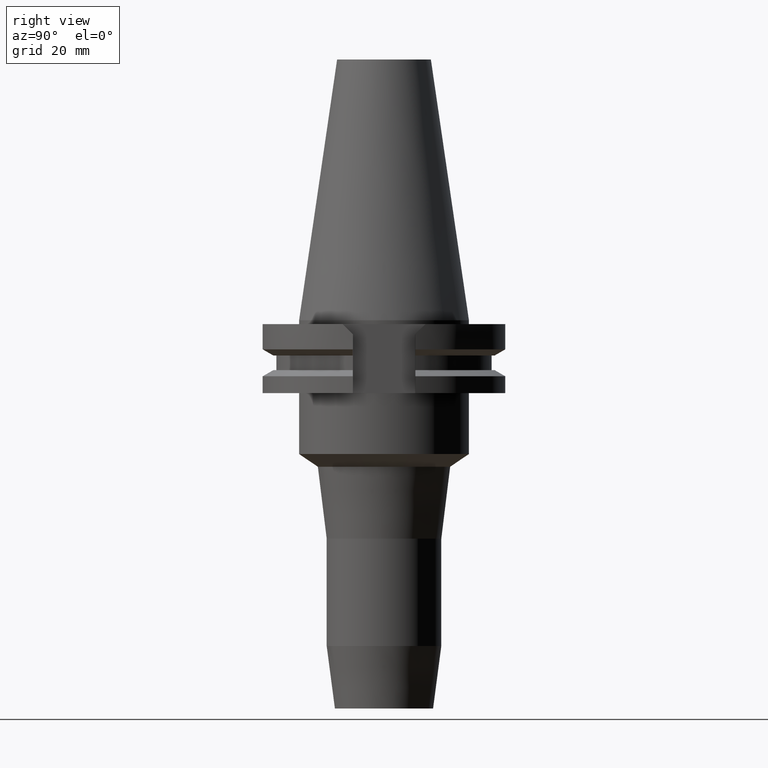
[diagram: clean part render]
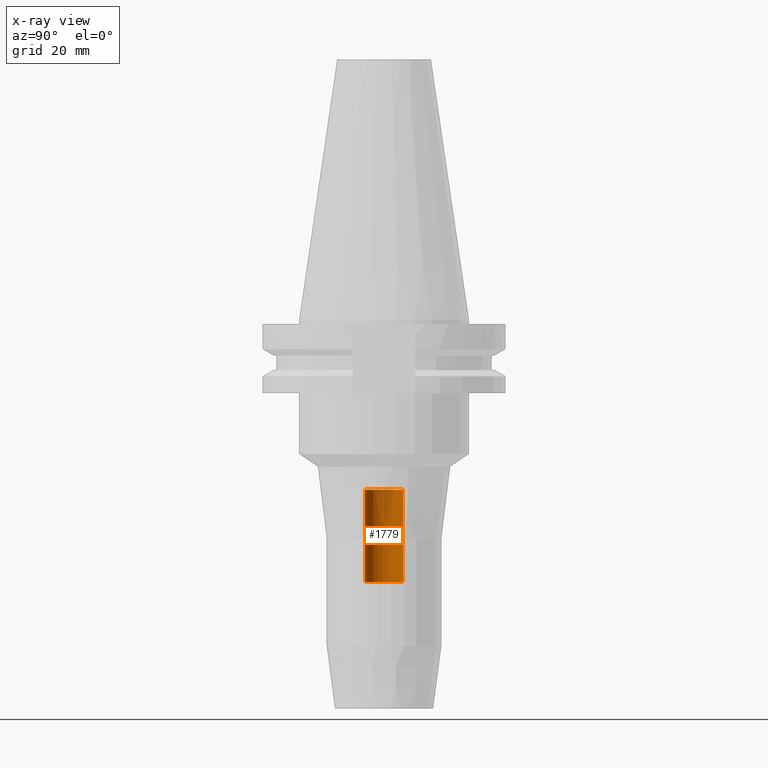
[diagram: x-ray — body ghosted, one internal face saturated and labeled with its STEP entity id]
A machine part, right view, then the same camera in x-ray: the body is ghosted and one INTERNAL B-rep face — a face not visible from any outside direction — is saturated and labeled: STEP entity #1779.
In plain terms, the highlighted cylindrical surface (edge-blend (fillet) strip) has radius 5 mm, axis along (0, 0, -1).
Its self-contained STEP definition (entity closure, byte-faithful):
#270=CARTESIAN_POINT('',(0.E0,2.164471368983E-14,-4.44E1));
#271=DIRECTION('',(0.E0,0.E0,1.E0));
#272=DIRECTION('',(0.E0,1.E0,0.E0));
#273=AXIS2_PLACEMENT_3D('',#270,#271,#272);
#294=DIRECTION('',(0.E0,0.E0,1.E0));
#295=VECTOR('',#294,2.42E1);
#296=CARTESIAN_POINT('',(0.E0,5.E0,-6.86E1));
#297=LINE('',#296,#295);
#301=DIRECTION('',(0.E0,0.E0,1.E0));
#302=VECTOR('',#301,2.42E1);
#303=CARTESIAN_POINT('',(0.E0,-5.E0,-6.86E1));
#304=LINE('',#303,#302);
#308=CARTESIAN_POINT('',(0.E0,2.164471368983E-14,-6.86E1));
#309=DIRECTION('',(0.E0,0.E0,-1.E0));
#310=DIRECTION('',(0.E0,-1.E0,0.E0));
#311=AXIS2_PLACEMENT_3D('',#308,#309,#310);
#1332=CARTESIAN_POINT('',(0.E0,-5.E0,-4.44E1));
#1333=CARTESIAN_POINT('',(0.E0,5.E0,-4.44E1));
#1334=VERTEX_POINT('',#1332);
#1335=VERTEX_POINT('',#1333);
#1336=CARTESIAN_POINT('',(0.E0,5.E0,-6.86E1));
#1337=VERTEX_POINT('',#1336);
#1338=CARTESIAN_POINT('',(0.E0,-5.E0,-6.86E1));
#1339=VERTEX_POINT('',#1338);
#1767=CARTESIAN_POINT('',(0.E0,2.164471368983E-14,7.67425E1));
#1768=DIRECTION('',(0.E0,0.E0,-1.E0));
#1769=DIRECTION('',(0.E0,-1.E0,0.E0));
#1770=AXIS2_PLACEMENT_3D('',#1767,#1768,#1769);
#1771=CYLINDRICAL_SURFACE('',#1770,5.E0);
#1772=ORIENTED_EDGE('',*,*,#1757,.F.);
#1774=ORIENTED_EDGE('',*,*,#1773,.F.);
#1775=ORIENTED_EDGE('',*,*,#1760,.T.);
#1776=ORIENTED_EDGE('',*,*,#1743,.F.);
#1777=EDGE_LOOP('',(#1772,#1774,#1775,#1776));
#1778=FACE_OUTER_BOUND('',#1777,.F.);
#274=CIRCLE('',#273,5.E0);
#312=CIRCLE('',#311,5.E0);
#1743=EDGE_CURVE('',#1335,#1334,#274,.T.);
#1757=EDGE_CURVE('',#1337,#1335,#297,.T.);
#1760=EDGE_CURVE('',#1339,#1334,#304,.T.);
#1773=EDGE_CURVE('',#1339,#1337,#312,.T.);
#1779=ADVANCED_FACE('',(#1778),#1771,.F.);